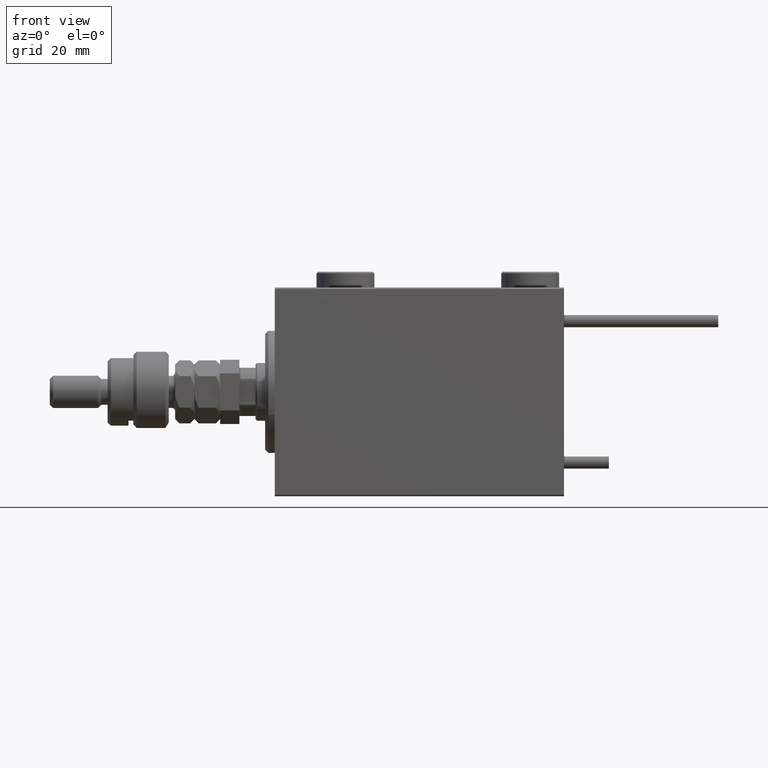
[diagram: clean part render]
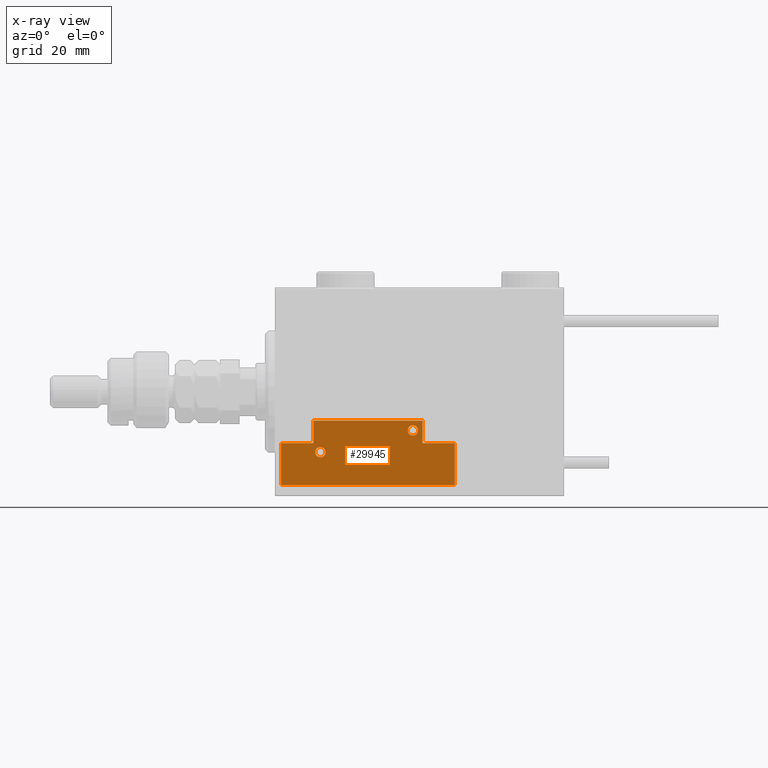
[diagram: x-ray — body ghosted, one internal face saturated and labeled with its STEP entity id]
A machine part, front view, then the same camera in x-ray: the body is ghosted and one INTERNAL B-rep face — a face not visible from any outside direction — is saturated and labeled: STEP entity #29945.
In plain terms, the highlighted planar face has unit normal (-0, 1, -0).
Its self-contained STEP definition (entity closure, byte-faithful):
#292 = CARTESIAN_POINT ( 'NONE',  ( 17.00000000000000000, 7.000000000000009770, 0.000000000000000000 ) ) ;
#336 = VECTOR ( 'NONE', #5148, 1000.000000000000000 ) ;
#1024 = LINE ( 'NONE', #47207, #336 ) ;
#1232 = DIRECTION ( 'NONE',  ( 0.000000000000000000, 0.000000000000000000, 1.000000000000000000 ) ) ;
#1832 = FACE_OUTER_BOUND ( 'NONE', #44076, .T. ) ;
#2432 = ORIENTED_EDGE ( 'NONE', *, *, #24727, .F. ) ;
#5148 = DIRECTION ( 'NONE',  ( 1.000000000000000000, 0.000000000000000000, 0.000000000000000000 ) ) ;
#5461 = CARTESIAN_POINT ( 'NONE',  ( 13.99999999999999822, 3.000000000000002665, 0.000000000000000000 ) ) ;
#5683 = FACE_BOUND ( 'NONE', #14263, .T. ) ;
#5967 = CARTESIAN_POINT ( 'NONE',  ( -14.79999999999994920, 9.800000000000004263, 0.000000000000000000 ) ) ;
#6458 = AXIS2_PLACEMENT_3D ( 'NONE', #52158, #22455, #42561 ) ;
#6620 = DIRECTION ( 'NONE',  ( 9.912705577010318647E-16, 1.000000000000000000, 0.000000000000000000 ) ) ;
#7031 = CARTESIAN_POINT ( 'NONE',  ( 27.00000000000006395, 7.000000000000007994, 0.000000000000000000 ) ) ;
#7722 = CARTESIAN_POINT ( 'NONE',  ( 27.00000000000006395, 20.00000000000001776, 0.000000000000000000 ) ) ;
#7775 = EDGE_CURVE ( 'NONE', #10742, #41769, #35486, .T. ) ;
#8179 = AXIS2_PLACEMENT_3D ( 'NONE', #5461, #18390, #22239 ) ;
#8712 = ORIENTED_EDGE ( 'NONE', *, *, #9912, .T. ) ;
#9011 = CIRCLE ( 'NONE', #47632, 1.600000000000000755 ) ;
#9912 = EDGE_CURVE ( 'NONE', #10311, #46876, #47504, .T. ) ;
#10311 = VERTEX_POINT ( 'NONE', #51555 ) ;
#10742 = VERTEX_POINT ( 'NONE', #39409 ) ;
#11011 = VECTOR ( 'NONE', #21448, 1000.000000000000000 ) ;
#11236 = ORIENTED_EDGE ( 'NONE', *, *, #19522, .F. ) ;
#12103 = VECTOR ( 'NONE', #40263, 1000.000000000000000 ) ;
#12134 = CARTESIAN_POINT ( 'NONE',  ( -26.99999999999994671, 7.000000000000005329, 0.000000000000000000 ) ) ;
#12318 = EDGE_CURVE ( 'NONE', #46876, #10311, #37130, .T. ) ;
#12624 = EDGE_CURVE ( 'NONE', #31912, #47208, #9011, .T. ) ;
#13405 = DIRECTION ( 'NONE',  ( 1.000000000000000000, 0.000000000000000000, 0.000000000000000000 ) ) ;
#13600 = DIRECTION ( 'NONE',  ( 1.000000000000000000, 0.000000000000000000, 0.000000000000000000 ) ) ;
#14263 = EDGE_LOOP ( 'NONE', ( #30109, #8712 ) ) ;
#14643 = LINE ( 'NONE', #52595, #24062 ) ;
#14908 = DIRECTION ( 'NONE',  ( -1.000000000000000000, 6.424901762877062263E-17, 0.000000000000000000 ) ) ;
#16332 = CARTESIAN_POINT ( 'NONE',  ( 16.99999999999999289, 3.252606517456513302E-15, 0.000000000000000000 ) ) ;
#17449 = CARTESIAN_POINT ( 'NONE',  ( 12.39999999999999858, 3.000000000000002665, 0.000000000000000000 ) ) ;
#18065 = FACE_BOUND ( 'NONE', #45936, .T. ) ;
#18390 = DIRECTION ( 'NONE',  ( 0.000000000000000000, 0.000000000000000000, 1.000000000000000000 ) ) ;
#19074 = VECTOR ( 'NONE', #44426, 1000.000000000000000 ) ;
#19522 = EDGE_CURVE ( 'NONE', #46599, #10742, #14643, .T. ) ;
#20839 = CARTESIAN_POINT ( 'NONE',  ( 27.00000000000006395, 7.000000000000007994, 0.000000000000000000 ) ) ;
#21448 = DIRECTION ( 'NONE',  ( 1.000000000000000000, -1.734723475976796001E-16, 0.000000000000000000 ) ) ;
#21576 = ORIENTED_EDGE ( 'NONE', *, *, #7775, .F. ) ;
#21582 = CARTESIAN_POINT ( 'NONE',  ( -14.79999999999994920, 9.800000000000004263, 0.000000000000000000 ) ) ;
#22055 = EDGE_CURVE ( 'NONE', #48075, #39860, #42349, .T. ) ;
#22239 = DIRECTION ( 'NONE',  ( 1.000000000000000000, 0.000000000000000000, 0.000000000000000000 ) ) ;
#22455 = DIRECTION ( 'NONE',  ( -0.000000000000000000, 0.000000000000000000, 1.000000000000000000 ) ) ;
#23466 = CARTESIAN_POINT ( 'NONE',  ( -16.99999999999999289, 7.000000000000003553, 0.000000000000000000 ) ) ;
#24062 = VECTOR ( 'NONE', #14908, 1000.000000000000000 ) ;
#24727 = EDGE_CURVE ( 'NONE', #41769, #46813, #32052, .T. ) ;
#25102 = ORIENTED_EDGE ( 'NONE', *, *, #46203, .F. ) ;
#25765 = CARTESIAN_POINT ( 'NONE',  ( -13.19999999999994778, 9.800000000000004263, 0.000000000000000000 ) ) ;
#25918 = DIRECTION ( 'NONE',  ( 1.000000000000000000, 0.000000000000000000, 0.000000000000000000 ) ) ;
#27102 = DIRECTION ( 'NONE',  ( 0.000000000000000000, 1.000000000000000000, 0.000000000000000000 ) ) ;
#28075 = LINE ( 'NONE', #32194, #52378 ) ;
#28203 = CARTESIAN_POINT ( 'NONE',  ( -26.99999999999994671, 7.000000000000005329, 0.000000000000000000 ) ) ;
#28429 = LINE ( 'NONE', #23466, #12103 ) ;
#29945 = ADVANCED_FACE ( 'NONE', ( #5683, #18065, #1832 ), #47203, .F. ) ;
#30109 = ORIENTED_EDGE ( 'NONE', *, *, #12318, .T. ) ;
#31200 = ORIENTED_EDGE ( 'NONE', *, *, #12624, .T. ) ;
#31912 = VERTEX_POINT ( 'NONE', #46256 ) ;
#32052 = LINE ( 'NONE', #28203, #19074 ) ;
#32194 = CARTESIAN_POINT ( 'NONE',  ( 16.99999999999999289, 3.252606517456513302E-15, 0.000000000000000000 ) ) ;
#32256 = ORIENTED_EDGE ( 'NONE', *, *, #22055, .F. ) ;
#32299 = EDGE_CURVE ( 'NONE', #39860, #46599, #48272, .T. ) ;
#33273 = EDGE_CURVE ( 'NONE', #47208, #31912, #41605, .T. ) ;
#33400 = VECTOR ( 'NONE', #47015, 1000.000000000000000 ) ;
#34234 = EDGE_CURVE ( 'NONE', #37457, #48779, #1024, .T. ) ;
#35019 = ORIENTED_EDGE ( 'NONE', *, *, #34234, .F. ) ;
#35486 = LINE ( 'NONE', #48098, #33400 ) ;
#36176 = AXIS2_PLACEMENT_3D ( 'NONE', #5967, #38464, #13405 ) ;
#36514 = ORIENTED_EDGE ( 'NONE', *, *, #39559, .F. ) ;
#37130 = CIRCLE ( 'NONE', #48492, 1.600000000000000755 ) ;
#37457 = VERTEX_POINT ( 'NONE', #50570 ) ;
#38464 = DIRECTION ( 'NONE',  ( 0.000000000000000000, 0.000000000000000000, 1.000000000000000000 ) ) ;
#38588 = CARTESIAN_POINT ( 'NONE',  ( 13.99999999999999822, 3.000000000000002665, 0.000000000000000000 ) ) ;
#39409 = CARTESIAN_POINT ( 'NONE',  ( -26.99999999999993605, 20.00000000000002132, 0.000000000000000000 ) ) ;
#39559 = EDGE_CURVE ( 'NONE', #48779, #48075, #28075, .T. ) ;
#39860 = VERTEX_POINT ( 'NONE', #20839 ) ;
#40263 = DIRECTION ( 'NONE',  ( 0.000000000000000000, -1.000000000000000000, 0.000000000000000000 ) ) ;
#41004 = ORIENTED_EDGE ( 'NONE', *, *, #32299, .F. ) ;
#41605 = CIRCLE ( 'NONE', #8179, 1.600000000000000755 ) ;
#41769 = VERTEX_POINT ( 'NONE', #12134 ) ;
#42349 = LINE ( 'NONE', #292, #11011 ) ;
#42561 = DIRECTION ( 'NONE',  ( 1.000000000000000000, 0.000000000000000000, 0.000000000000000000 ) ) ;
#43953 = CARTESIAN_POINT ( 'NONE',  ( -16.99999999999999289, 7.000000000000003553, 0.000000000000000000 ) ) ;
#44076 = EDGE_LOOP ( 'NONE', ( #32256, #36514, #35019, #25102, #2432, #21576, #11236, #41004 ) ) ;
#44426 = DIRECTION ( 'NONE',  ( 1.000000000000000000, -1.734723475976815230E-16, 0.000000000000000000 ) ) ;
#45936 = EDGE_LOOP ( 'NONE', ( #31200, #51346 ) ) ;
#46203 = EDGE_CURVE ( 'NONE', #46813, #37457, #28429, .T. ) ;
#46256 = CARTESIAN_POINT ( 'NONE',  ( 15.59999999999999964, 3.000000000000002665, 0.000000000000000000 ) ) ;
#46599 = VERTEX_POINT ( 'NONE', #7722 ) ;
#46811 = DIRECTION ( 'NONE',  ( 0.000000000000000000, 0.000000000000000000, 1.000000000000000000 ) ) ;
#46813 = VERTEX_POINT ( 'NONE', #43953 ) ;
#46876 = VERTEX_POINT ( 'NONE', #25765 ) ;
#47015 = DIRECTION ( 'NONE',  ( -8.006416042969869188E-16, -1.000000000000000000, 0.000000000000000000 ) ) ;
#47203 = PLANE ( 'NONE',  #6458 ) ;
#47207 = CARTESIAN_POINT ( 'NONE',  ( -16.99999999999999289, 3.252606517456513302E-15, 0.000000000000000000 ) ) ;
#47208 = VERTEX_POINT ( 'NONE', #17449 ) ;
#47504 = CIRCLE ( 'NONE', #36176, 1.600000000000000755 ) ;
#47632 = AXIS2_PLACEMENT_3D ( 'NONE', #38588, #46811, #25918 ) ;
#47653 = VECTOR ( 'NONE', #27102, 1000.000000000000000 ) ;
#48075 = VERTEX_POINT ( 'NONE', #51343 ) ;
#48098 = CARTESIAN_POINT ( 'NONE',  ( -26.99999999999993605, 20.00000000000002132, 0.000000000000000000 ) ) ;
#48272 = LINE ( 'NONE', #7031, #47653 ) ;
#48492 = AXIS2_PLACEMENT_3D ( 'NONE', #21582, #1232, #13600 ) ;
#48779 = VERTEX_POINT ( 'NONE', #16332 ) ;
#50570 = CARTESIAN_POINT ( 'NONE',  ( -16.99999999999999289, 3.252606517456513302E-15, 0.000000000000000000 ) ) ;
#51343 = CARTESIAN_POINT ( 'NONE',  ( 17.00000000000000000, 7.000000000000009770, 0.000000000000000000 ) ) ;
#51346 = ORIENTED_EDGE ( 'NONE', *, *, #33273, .T. ) ;
#51555 = CARTESIAN_POINT ( 'NONE',  ( -16.39999999999994884, 9.800000000000004263, 0.000000000000000000 ) ) ;
#52158 = CARTESIAN_POINT ( 'NONE',  ( 0.000000000000000000, 0.000000000000000000, 0.000000000000000000 ) ) ;
#52378 = VECTOR ( 'NONE', #6620, 1000.000000000000000 ) ;
#52595 = CARTESIAN_POINT ( 'NONE',  ( 27.00000000000006395, 20.00000000000001776, 0.000000000000000000 ) ) ;